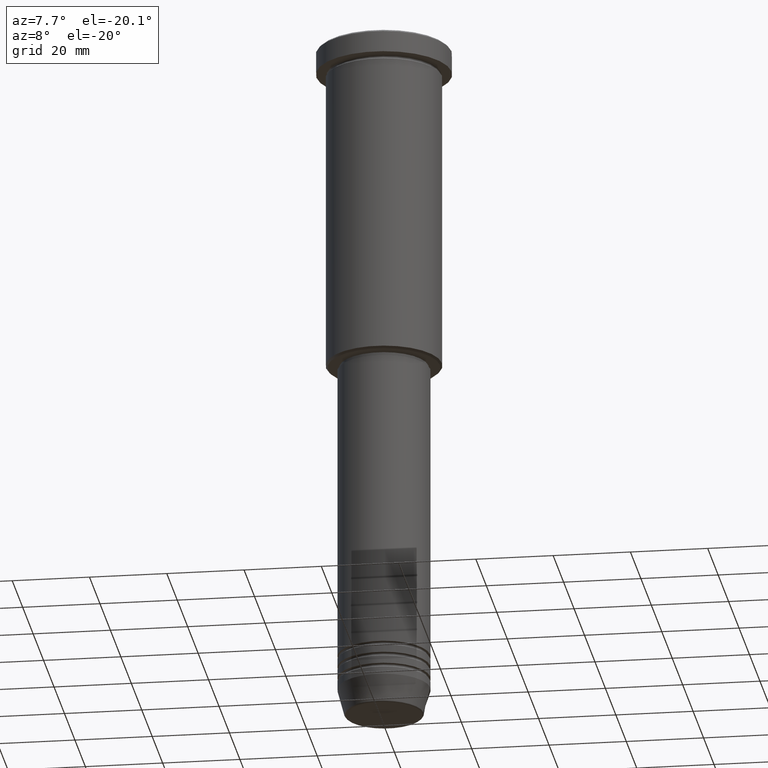
[diagram: clean part render]
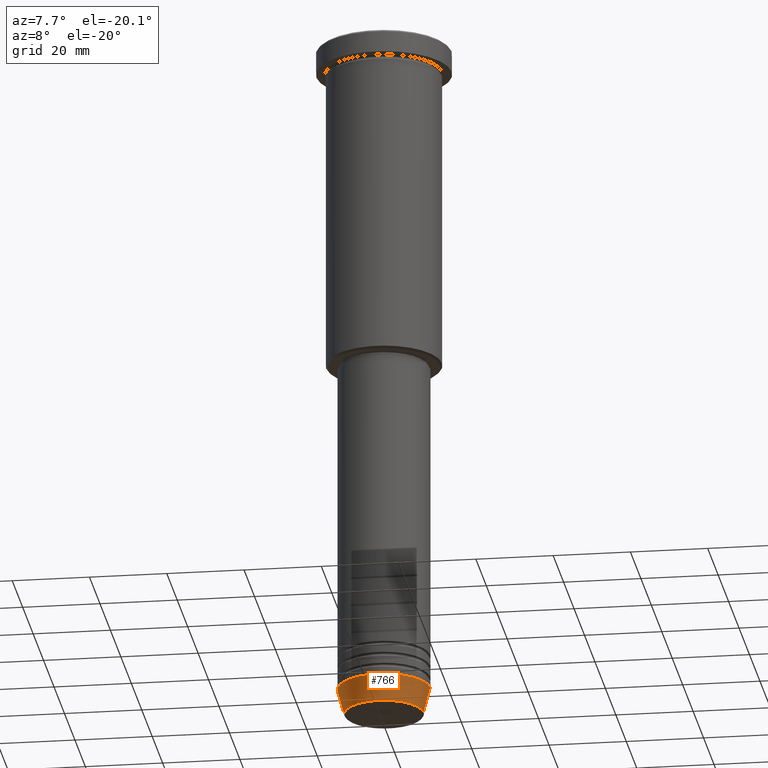
[diagram: same view with one face highlighted and labeled with its STEP entity id]
A machine part, auxiliary view. The second image highlights one B-rep face of the part: STEP entity #766.
In plain terms, the highlighted conical surface has half-angle 15 deg.
Its self-contained STEP definition (entity closure, byte-faithful):
#31 = AXIS2_PLACEMENT_3D ( 'NONE', #912, #167, #469 ) ;
#34 = CARTESIAN_POINT ( 'NONE',  ( 0.000000000000000000, 0.000000000000000000, -180.6294095225512706 ) ) ;
#49 = LINE ( 'NONE', #958, #758 ) ;
#105 = ORIENTED_EDGE ( 'NONE', *, *, #313, .F. ) ;
#118 = AXIS2_PLACEMENT_3D ( 'NONE', #615, #1071, #973 ) ;
#167 = DIRECTION ( 'NONE',  ( -0.000000000000000000, -0.000000000000000000, 1.000000000000000000 ) ) ;
#174 = VERTEX_POINT ( 'NONE', #471 ) ;
#199 = DIRECTION ( 'NONE',  ( -0.000000000000000000, -0.000000000000000000, 1.000000000000000000 ) ) ;
#233 = DIRECTION ( 'NONE',  ( 0.2588190451025213501, 0.000000000000000000, 0.9659258262890680902 ) ) ;
#313 = EDGE_CURVE ( 'NONE', #1025, #331, #328, .T. ) ;
#328 = LINE ( 'NONE', #808, #736 ) ;
#331 = VERTEX_POINT ( 'NONE', #626 ) ;
#347 = EDGE_CURVE ( 'NONE', #1025, #638, #777, .T. ) ;
#414 = DIRECTION ( 'NONE',  ( -0.2588190451025213501, 3.169619151431772337E-17, 0.9659258262890680902 ) ) ;
#420 = EDGE_LOOP ( 'NONE', ( #105, #1139, #1153, #797 ) ) ;
#469 = DIRECTION ( 'NONE',  ( 1.000000000000000000, 0.000000000000000000, 0.000000000000000000 ) ) ;
#471 = CARTESIAN_POINT ( 'NONE',  ( 12.00000000000000000, 0.000000000000000000, -174.0000000000000284 ) ) ;
#493 = EDGE_CURVE ( 'NONE', #331, #174, #625, .T. ) ;
#573 = FACE_OUTER_BOUND ( 'NONE', #420, .T. ) ;
#615 = CARTESIAN_POINT ( 'NONE',  ( 0.000000000000000000, 0.000000000000000000, -174.0000000000000284 ) ) ;
#625 = CIRCLE ( 'NONE', #118, 12.00000000000000000 ) ;
#626 = CARTESIAN_POINT ( 'NONE',  ( -12.00000000000000000, 1.469576158976823947E-15, -174.0000000000000284 ) ) ;
#638 = VERTEX_POINT ( 'NONE', #757 ) ;
#670 = CARTESIAN_POINT ( 'NONE',  ( -10.22365507213719837, 1.360806402472383336E-15, -180.6294095225512706 ) ) ;
#676 = DIRECTION ( 'NONE',  ( 1.000000000000000000, 0.000000000000000000, 0.000000000000000000 ) ) ;
#736 = VECTOR ( 'NONE', #414, 1000.000000000000000 ) ;
#753 = AXIS2_PLACEMENT_3D ( 'NONE', #34, #199, #676 ) ;
#757 = CARTESIAN_POINT ( 'NONE',  ( 10.22365507213719660, 0.000000000000000000, -180.6294095225512706 ) ) ;
#758 = VECTOR ( 'NONE', #233, 1000.000000000000000 ) ;
#766 = ADVANCED_FACE ( 'NONE', ( #573 ), #778, .T. ) ;
#777 = CIRCLE ( 'NONE', #753, 10.22365507213719660 ) ;
#778 = CONICAL_SURFACE ( 'NONE', #31, 12.00000000000000000, 0.2617993877991500740 ) ;
#797 = ORIENTED_EDGE ( 'NONE', *, *, #493, .F. ) ;
#808 = CARTESIAN_POINT ( 'NONE',  ( -12.00000000000000000, 1.469576158976823947E-15, -174.0000000000000284 ) ) ;
#912 = CARTESIAN_POINT ( 'NONE',  ( 0.000000000000000000, 0.000000000000000000, -174.0000000000000284 ) ) ;
#958 = CARTESIAN_POINT ( 'NONE',  ( 12.00000000000000000, 0.000000000000000000, -174.0000000000000284 ) ) ;
#973 = DIRECTION ( 'NONE',  ( 1.000000000000000000, 0.000000000000000000, 0.000000000000000000 ) ) ;
#1025 = VERTEX_POINT ( 'NONE', #670 ) ;
#1071 = DIRECTION ( 'NONE',  ( -0.000000000000000000, -0.000000000000000000, 1.000000000000000000 ) ) ;
#1118 = EDGE_CURVE ( 'NONE', #638, #174, #49, .T. ) ;
#1139 = ORIENTED_EDGE ( 'NONE', *, *, #347, .T. ) ;
#1153 = ORIENTED_EDGE ( 'NONE', *, *, #1118, .T. ) ;